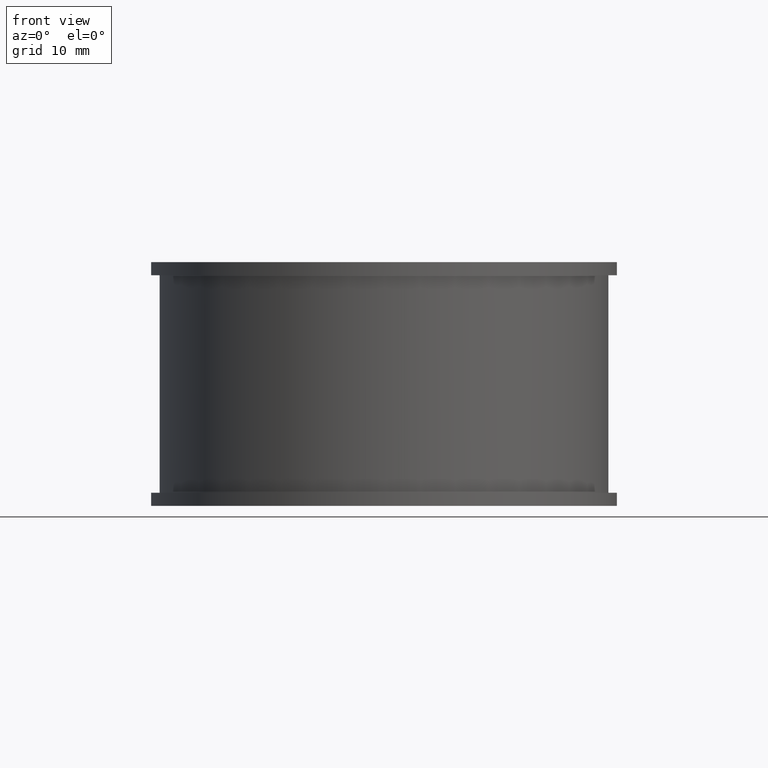
[diagram: clean part render]
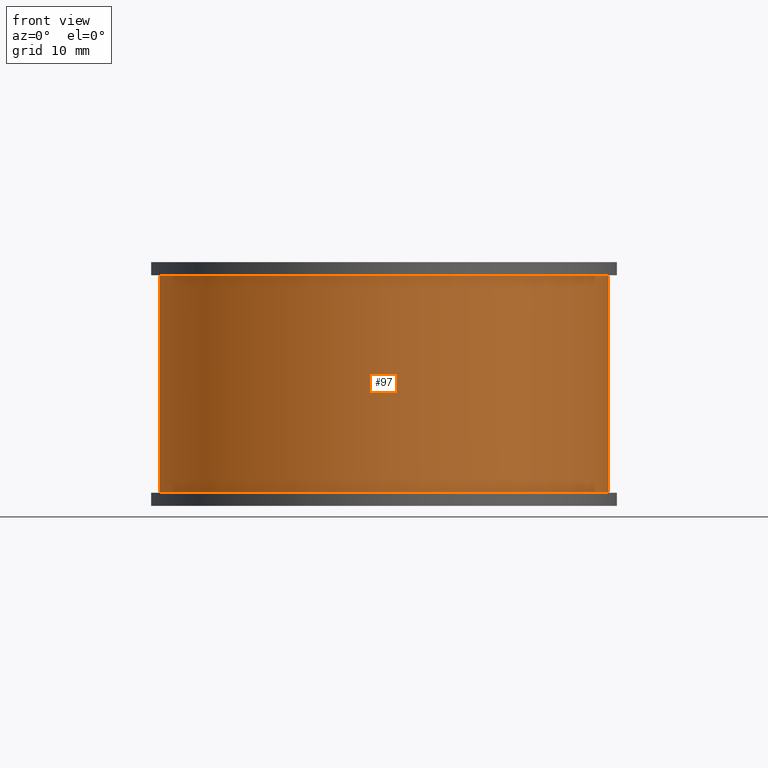
[diagram: same view with one face highlighted and labeled with its STEP entity id]
A machine part, front view. The second image highlights one B-rep face of the part: STEP entity #97.
In plain terms, the highlighted cylindrical surface (partial cylindrical patch) has radius 25.8 mm, axis along (0, 0, -1).
Its self-contained STEP definition (entity closure, byte-faithful):
#97 = ADVANCED_FACE( '', ( #146 ), #147, .T. );
#146 = FACE_OUTER_BOUND( '', #198, .T. );
#147 = CYLINDRICAL_SURFACE( '', #199, 25.8000000000000 );
#198 = EDGE_LOOP( '', ( #400, #401, #402, #403 ) );
#199 = AXIS2_PLACEMENT_3D( '', #404, #405, #406 );
#400 = ORIENTED_EDGE( '', *, *, #487, .T. );
#401 = ORIENTED_EDGE( '', *, *, #497, .T. );
#402 = ORIENTED_EDGE( '', *, *, #443, .F. );
#403 = ORIENTED_EDGE( '', *, *, #498, .T. );
#404 = CARTESIAN_POINT( '', ( 2.60208521396521E-015, 1.38777878078145E-014, -25.0000000000000 ) );
#405 = DIRECTION( '', ( 0.000000000000000, 0.000000000000000, -1.00000000000000 ) );
#406 = DIRECTION( '', ( -0.144032921810699, -0.989572896473359, 0.000000000000000 ) );
#443 = EDGE_CURVE( '', #529, #530, #531, .T. );
#487 = EDGE_CURVE( '', #603, #601, #604, .T. );
#497 = EDGE_CURVE( '', #601, #530, #617, .T. );
#498 = EDGE_CURVE( '', #529, #603, #618, .F. );
#529 = VERTEX_POINT( '', #664 );
#530 = VERTEX_POINT( '', #665 );
#531 = CIRCLE( '', #666, 25.8000000000000 );
#601 = VERTEX_POINT( '', #760 );
#603 = VERTEX_POINT( '', #762 );
#604 = CIRCLE( '', #763, 25.8000000000000 );
#617 = LINE( '', #782, #783 );
#618 = LINE( '', #784, #785 );
#664 = CARTESIAN_POINT( '', ( -6.03237410071942, 25.0848652120949, 0.000000000000000 ) );
#665 = CARTESIAN_POINT( '', ( 6.03237410071943, 25.0848652120949, 0.000000000000000 ) );
#666 = AXIS2_PLACEMENT_3D( '', #803, #804, #805 );
#760 = CARTESIAN_POINT( '', ( 6.03237410071943, 25.0848652120949, -25.0000000000000 ) );
#762 = CARTESIAN_POINT( '', ( -6.03237410071942, 25.0848652120949, -25.0000000000000 ) );
#763 = AXIS2_PLACEMENT_3D( '', #887, #888, #889 );
#782 = CARTESIAN_POINT( '', ( 6.03237410071943, 25.0848652120949, -25.0000000000000 ) );
#783 = VECTOR( '', #905, 1000.00000000000 );
#784 = CARTESIAN_POINT( '', ( -6.03237410071942, 25.0848652120949, -25.0000000000000 ) );
#785 = VECTOR( '', #906, 1000.00000000000 );
#803 = CARTESIAN_POINT( '', ( 2.60208521396521E-015, 1.38777878078145E-014, 0.000000000000000 ) );
#804 = DIRECTION( '', ( 0.000000000000000, 0.000000000000000, 1.00000000000000 ) );
#805 = DIRECTION( '', ( 1.00000000000000, -8.32667268468867E-017, 0.000000000000000 ) );
#887 = CARTESIAN_POINT( '', ( 2.60208521396521E-015, 1.38777878078145E-014, -25.0000000000000 ) );
#888 = DIRECTION( '', ( 0.000000000000000, 0.000000000000000, 1.00000000000000 ) );
#889 = DIRECTION( '', ( 1.00000000000000, -8.32667268468867E-017, 0.000000000000000 ) );
#905 = DIRECTION( '', ( 0.000000000000000, 0.000000000000000, 1.00000000000000 ) );
#906 = DIRECTION( '', ( 0.000000000000000, 0.000000000000000, 1.00000000000000 ) );